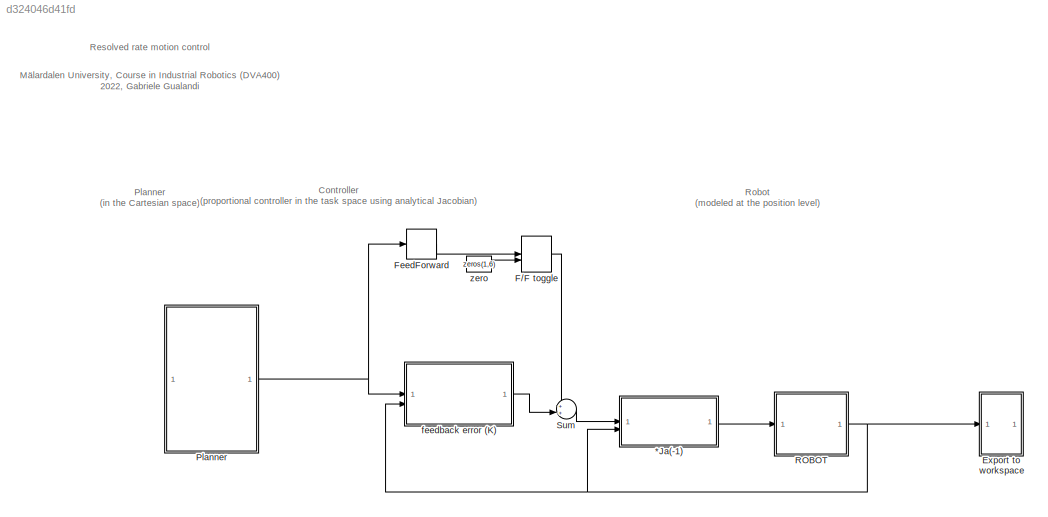
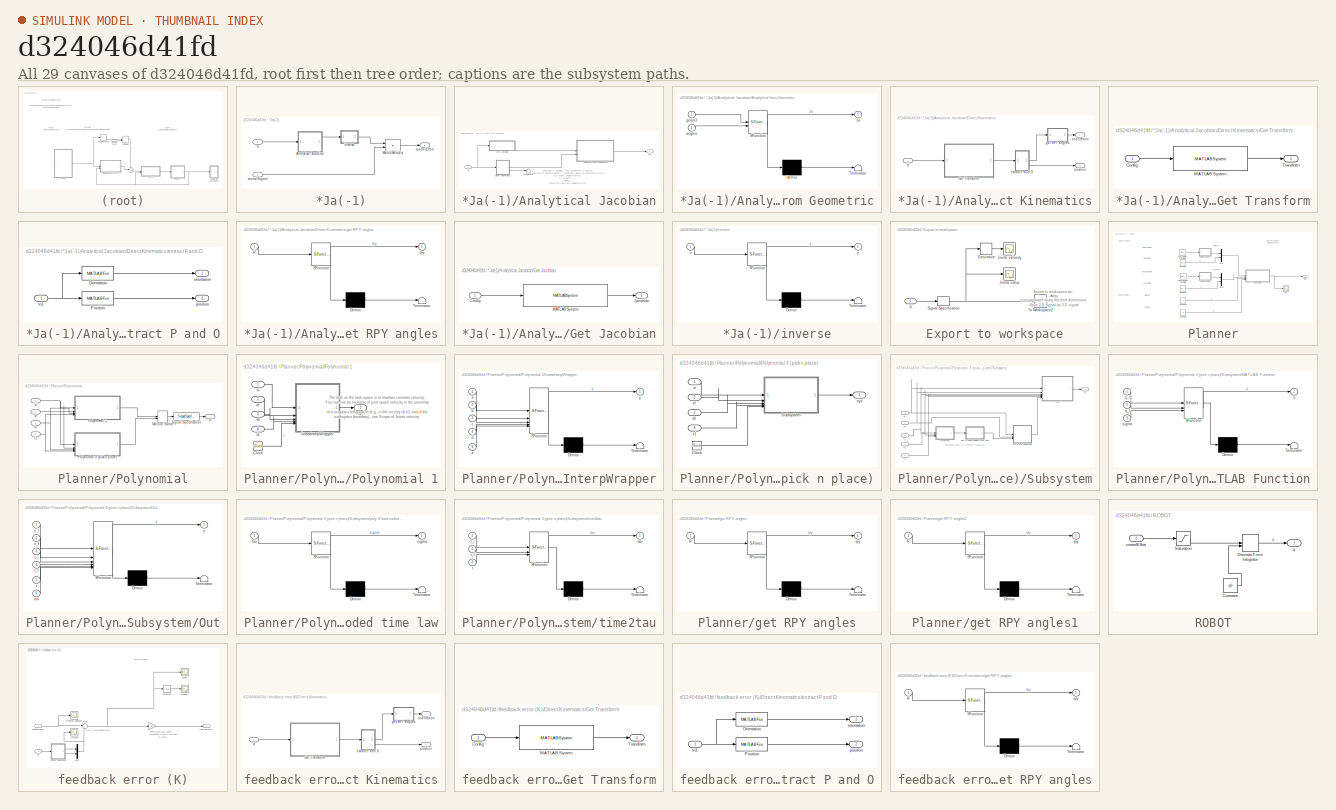
[diagram: thumbnail index - all 29 canvases of the model, root first then tree order]
MODEL slx_d324046d41fd
KIND model
CONFIG AbsTol = auto
CONFIG EnableMultiTasking = off
CONFIG FixedStep = 0.001
CONFIG MaxStep = auto
CONFIG MinStep = auto
CONFIG RelTol = 1e-3
CONFIG SampleTimeConstraint = Unconstrained
CONFIG SolverName = FixedStepAuto
CONFIG StartTime = 0.0
CONFIG StopTime = 5
BLOCK [SubSystem] *Ja(-1)
BLOCK [SubSystem] *Ja(-1)/Analytical Jacobian
BLOCK [SubSystem] *Ja(-1)/Analytical Jacobian/Analytical from Geometric
  ErrorFcn = Stateflow.Translate.translate
  PermitHierarchicalResolution = ExplicitOnly
  SFBlockType = MATLAB Function
  TreatAsAtomicUnit = on
BLOCK [Demux] *Ja(-1)/Analytical Jacobian/Analytical from Geometric/ Demux 
  Outputs = 1
BLOCK [S-Function] *Ja(-1)/Analytical Jacobian/Analytical from Geometric/ SFunction 
  EnableBusSupport = off
  FunctionName = sf_sfun
  PortCounts = [2 2]
  SFcnIsStateOwnerBlock = off
  SFunctionDeploymentMode = off
  Tag = Stateflow S-Function 5
BLOCK [Terminator] *Ja(-1)/Analytical Jacobian/Analytical from Geometric/ Terminator 
BLOCK [Outport] *Ja(-1)/Analytical Jacobian/Analytical from Geometric/Ja
BLOCK [Inport] *Ja(-1)/Analytical Jacobian/Analytical from Geometric/angles
  Port = 2
BLOCK [Inport] *Ja(-1)/Analytical Jacobian/Analytical from Geometric/geomJ
BLOCK [SubSystem] *Ja(-1)/Analytical Jacobian/Direct Kinematics
BLOCK [SubSystem] *Ja(-1)/Analytical Jacobian/Direct Kinematics/Get Transform
  LibrarySourceBlock = robotmaniplib/Get Transform
BLOCK [Inport] *Ja(-1)/Analytical Jacobian/Direct Kinematics/Get Transform/Config
BLOCK [MATLABSystem] *Ja(-1)/Analytical Jacobian/Direct Kinematics/Get Transform/MATLAB System
  MaskDisplay = disp('GetTransformBlock');\nport_label('input',1,'q');\nport_label('output',1,'tform');
  MaskType = robotics.slmanip.internal.block.GetTransformBlock
  SimulateUsing = Code generation
  SourceBodyName = SourceBody
  System = robotics.slmanip.internal.block.GetTransformBlock
  TargetBodyName = TargetBody
  TreeStruct = TreeStruct
BLOCK [Outport] *Ja(-1)/Analytical Jacobian/Direct Kinematics/Get Transform/Transform
  VectorParamsAs1DForOutWhenUnconnected = off
BLOCK [SubSystem] *Ja(-1)/Analytical Jacobian/Direct Kinematics/extract P and O
BLOCK [Inport] *Ja(-1)/Analytical Jacobian/Direct Kinematics/extract P and O/In1
  NameLocation = top
BLOCK [MATLABFcn] *Ja(-1)/Analytical Jacobian/Direct Kinematics/extract P and O/Orientation
  MATLABFcn = tform2rotm
  Output1D = off
BLOCK [MATLABFcn] *Ja(-1)/Analytical Jacobian/Direct Kinematics/extract P and O/Position
  MATLABFcn = tform2trvec
BLOCK [Outport] *Ja(-1)/Analytical Jacobian/Direct Kinematics/extract P and O/orientation
  NameLocation = top
BLOCK [Outport] *Ja(-1)/Analytical Jacobian/Direct Kinematics/extract P and O/position
  NameLocation = top
  Port = 2
BLOCK [SubSystem] *Ja(-1)/Analytical Jacobian/Direct Kinematics/get RPY angles
  ErrorFcn = Stateflow.Translate.translate
  PermitHierarchicalResolution = ExplicitOnly
  SFBlockType = MATLAB Function
  TreatAsAtomicUnit = on
BLOCK [Demux] *Ja(-1)/Analytical Jacobian/Direct Kinematics/get RPY angles/ Demux 
  Outputs = 1
BLOCK [S-Function] *Ja(-1)/Analytical Jacobian/Direct Kinematics/get RPY angles/ SFunction 
  EnableBusSupport = off
  FunctionName = sf_sfun
  PortCounts = [1 2]
  SFcnIsStateOwnerBlock = off
  SFunctionDeploymentMode = off
  Tag = Stateflow S-Function 3
BLOCK [Terminator] *Ja(-1)/Analytical Jacobian/Direct Kinematics/get RPY angles/ Terminator 
BLOCK [Inport] *Ja(-1)/Analytical Jacobian/Direct Kinematics/get RPY angles/R
BLOCK [Outport] *Ja(-1)/Analytical Jacobian/Direct Kinematics/get RPY angles/rpy
BLOCK [Outport] *Ja(-1)/Analytical Jacobian/Direct Kinematics/orientation
  NameLocation = top
BLOCK [Outport] *Ja(-1)/Analytical Jacobian/Direct Kinematics/position
  Port = 2
BLOCK [Inport] *Ja(-1)/Analytical Jacobian/Direct Kinematics/q
BLOCK [SubSystem] *Ja(-1)/Analytical Jacobian/Get Jacobian
  LibrarySourceBlock = robotmaniplib/Get Jacobian
BLOCK [Inport] *Ja(-1)/Analytical Jacobian/Get Jacobian/Config
BLOCK [Outport] *Ja(-1)/Analytical Jacobian/Get Jacobian/Jacobian
  VectorParamsAs1DForOutWhenUnconnected = off
BLOCK [MATLABSystem] *Ja(-1)/Analytical Jacobian/Get Jacobian/MATLAB System
  EEBodyName = EndEffector
  MaskDisplay = disp('GetJacobianBlock');\nport_label('input',1,'q');\nport_label('output',1,'jacobianMat');
  MaskType = robotics.slmanip.internal.block.GetJacobianBlock
  SimulateUsing = Code generation
  System = robotics.slmanip.internal.block.GetJacobianBlock
  TreeStruct = TreeStruct
BLOCK [Outport] *Ja(-1)/Analytical Jacobian/Ja
BLOCK [Terminator] *Ja(-1)/Analytical Jacobian/Terminator
BLOCK [Inport] *Ja(-1)/Analytical Jacobian/q
BLOCK [Product] *Ja(-1)/Matrix Multiply
  Multiplication = Matrix(*)
BLOCK [Outport] *Ja(-1)/controlEffort
BLOCK [Inport] *Ja(-1)/controlSignal
BLOCK [SubSystem] *Ja(-1)/inverse
  ErrorFcn = Stateflow.Translate.translate
  PermitHierarchicalResolution = ExplicitOnly
  SFBlockType = MATLAB Function
  TreatAsAtomicUnit = on
BLOCK [Demux] *Ja(-1)/inverse/ Demux 
  Outputs = 1
BLOCK [S-Function] *Ja(-1)/inverse/ SFunction 
  EnableBusSupport = on
  FunctionName = sf_sfun
  PortCounts = [1 2]
  SFcnIsStateOwnerBlock = off
  SFunctionDeploymentMode = off
  Tag = Stateflow S-Function 2
BLOCK [Terminator] *Ja(-1)/inverse/ Terminator 
BLOCK [Inport] *Ja(-1)/inverse/u
BLOCK [Outport] *Ja(-1)/inverse/y
BLOCK [Inport] *Ja(-1)/q
  Port = 2
BLOCK [SubSystem] Export to workspace
BLOCK [Derivative] Export to workspace/Derivative
BLOCK [Scope] Export to workspace/Joints value
  Floating = off
  NumInputPorts = 1
  ScopeSpecificationString = Simulink.scopes.TimeScopeBlockCfg('CurrentConfiguration', extmgr.ConfigurationSet(extmgr.Configuration('Core','General UI',true),extmgr.Configuration('Core','Source UI',true),extmgr.Configuration('Sources','WiredSimulink',true,'DataLoggingVariableName','ScopeData4'),extmgr.Configuration('Visuals','Time Domain',true,'SerializedDisplays',{struct('MinYLimReal','-1.73617','MaxYLimReal','3.68357','YLab...<+2192ch>
BLOCK [Scope] Export to workspace/Joints velocity
  Floating = off
  NumInputPorts = 1
  ScopeSpecificationString = Simulink.scopes.TimeScopeBlockCfg('CurrentConfiguration', extmgr.ConfigurationSet(extmgr.Configuration('Core','General UI',true),extmgr.Configuration('Core','Source UI',true),extmgr.Configuration('Sources','WiredSimulink',true,'DataLoggingVariableName','ScopeData3'),extmgr.Configuration('Visuals','Time Domain',true,'SerializedDisplays',{struct('MinYLimReal','-2.32072','MaxYLimReal','7.38548','YLab...<+2132ch>
BLOCK [SignalSpecification] Export to workspace/Signal Specification
  Dimensions = [6,1]
BLOCK [ToWorkspace] Export to workspace/To Workspace2
  MaxDataPoints = inf
  NameLocation = top
  SampleTime = -1
  VariableName = q
BLOCK [Inport] Export to workspace/q
BLOCK [ManualSwitch] F//F toggle
BLOCK [Derivative] FeedForward
BLOCK [SubSystem] Planner
BLOCK [Constant] Planner/Constant
  Value = pe_i
  VectorParams1D = off
BLOCK [Constant] Planner/Constant1
  Value = pe_f
  VectorParams1D = off
BLOCK [Constant] Planner/Constant2
  Value = t_i
BLOCK [Constant] Planner/Constant3
  Value = t_f
BLOCK [Constant] Planner/Desired Final Orientation
  Value = orie_f
BLOCK [Constant] Planner/Desired Initial Orientation
  Value = orie_i
BLOCK [Mux] Planner/Mux1
  DisplayOption = bar
  Inputs = 2
BLOCK [Mux] Planner/Mux2
  DisplayOption = bar
  Inputs = 2
BLOCK [Scope] Planner/Plot
  Floating = off
  NumInputPorts = 1
  ScopeSpecificationString = Simulink.scopes.TimeScopeBlockCfg('CurrentConfiguration', extmgr.ConfigurationSet(extmgr.Configuration('Core','General UI',true),extmgr.Configuration('Core','Source UI',true),extmgr.Configuration('Sources','WiredSimulink',true,'DataLoggingVariableName','ScopeData7'),extmgr.Configuration('Visuals','Time Domain',true,'SerializedDisplays',{struct('MinYLimReal','-0.75671','MaxYLimReal','1.82941','YLab...<+2161ch>
BLOCK [SubSystem] Planner/Polynomial
BLOCK [ManualSwitch] Planner/Polynomial/Manual Switch
BLOCK [Outport] Planner/Polynomial/P
BLOCK [SubSystem] Planner/Polynomial/Polynomial 1
BLOCK [Clock] Planner/Polynomial/Polynomial 1/Clock
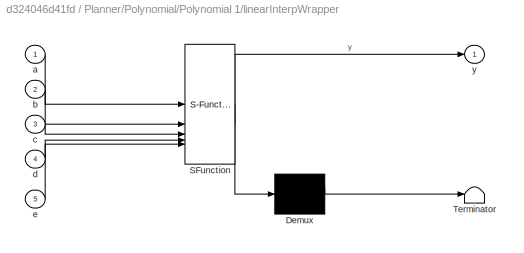
BLOCK [SubSystem] Planner/Polynomial/Polynomial 1/linearInterpWrapper
  ErrorFcn = Stateflow.Translate.translate
  PermitHierarchicalResolution = ExplicitOnly
  SFBlockType = MATLAB Function
  TreatAsAtomicUnit = on
BLOCK [Demux] Planner/Polynomial/Polynomial 1/linearInterpWrapper/ Demux 
  Outputs = 1
BLOCK [S-Function] Planner/Polynomial/Polynomial 1/linearInterpWrapper/ SFunction 
  EnableBusSupport = on
  FunctionName = sf_sfun
  PortCounts = [5 2]
  SFcnIsStateOwnerBlock = off
  SFunctionDeploymentMode = off
  Tag = Stateflow S-Function 10
BLOCK [Terminator] Planner/Polynomial/Polynomial 1/linearInterpWrapper/ Terminator 
BLOCK [Inport] Planner/Polynomial/Polynomial 1/linearInterpWrapper/a
BLOCK [Inport] Planner/Polynomial/Polynomial 1/linearInterpWrapper/b
  Port = 2
BLOCK [Inport] Planner/Polynomial/Polynomial 1/linearInterpWrapper/c
  Port = 3
BLOCK [Inport] Planner/Polynomial/Polynomial 1/linearInterpWrapper/d
  Port = 4
BLOCK [Inport] Planner/Polynomial/Polynomial 1/linearInterpWrapper/e
  Port = 5
BLOCK [Outport] Planner/Polynomial/Polynomial 1/linearInterpWrapper/y
BLOCK [Inport] Planner/Polynomial/Polynomial 1/t0
  Port = 3
BLOCK [Inport] Planner/Polynomial/Polynomial 1/t1
  Port = 4
BLOCK [Inport] Planner/Polynomial/Polynomial 1/xf
  Port = 2
BLOCK [Inport] Planner/Polynomial/Polynomial 1/xi
BLOCK [Outport] Planner/Polynomial/Polynomial 1/xyz
BLOCK [SubSystem] Planner/Polynomial/Polynomial 3 (pick n place)
BLOCK [Clock] Planner/Polynomial/Polynomial 3 (pick n place)/Clock
BLOCK [SubSystem] Planner/Polynomial/Polynomial 3 (pick n place)/Subsystem
BLOCK [SubSystem] Planner/Polynomial/Polynomial 3 (pick n place)/Subsystem/MATLAB Function
  ErrorFcn = Stateflow.Translate.translate
  PermitHierarchicalResolution = ExplicitOnly
  SFBlockType = MATLAB Function
  TreatAsAtomicUnit = on
BLOCK [Demux] Planner/Polynomial/Polynomial 3 (pick n place)/Subsystem/MATLAB Function/ Demux 
  Outputs = 1
BLOCK [S-Function] Planner/Polynomial/Polynomial 3 (pick n place)/Subsystem/MATLAB Function/ SFunction 
  EnableBusSupport = on
  FunctionName = sf_sfun
  PortCounts = [3 2]
  SFcnIsStateOwnerBlock = off
  SFunctionDeploymentMode = off
  Tag = Stateflow S-Function 7
BLOCK [Terminator] Planner/Polynomial/Polynomial 3 (pick n place)/Subsystem/MATLAB Function/ Terminator 
BLOCK [Outport] Planner/Polynomial/Polynomial 3 (pick n place)/Subsystem/MATLAB Function/q
BLOCK [Inport] Planner/Polynomial/Polynomial 3 (pick n place)/Subsystem/MATLAB Function/q_f
  Port = 2
BLOCK [Inport] Planner/Polynomial/Polynomial 3 (pick n place)/Subsystem/MATLAB Function/q_i
BLOCK [Inport] Planner/Polynomial/Polynomial 3 (pick n place)/Subsystem/MATLAB Function/sigma
  Port = 3
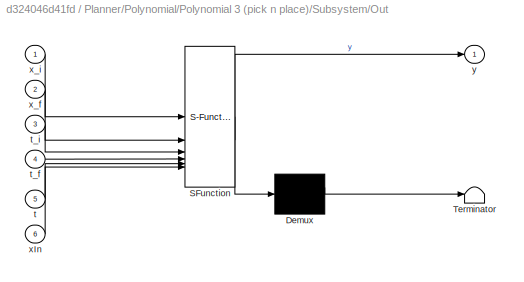
BLOCK [SubSystem] Planner/Polynomial/Polynomial 3 (pick n place)/Subsystem/Out
  ErrorFcn = Stateflow.Translate.translate
  PermitHierarchicalResolution = ExplicitOnly
  SFBlockType = MATLAB Function
  TreatAsAtomicUnit = on
BLOCK [Demux] Planner/Polynomial/Polynomial 3 (pick n place)/Subsystem/Out/ Demux 
  Outputs = 1
BLOCK [S-Function] Planner/Polynomial/Polynomial 3 (pick n place)/Subsystem/Out/ SFunction 
  EnableBusSupport = on
  FunctionName = sf_sfun
  PortCounts = [6 2]
  SFcnIsStateOwnerBlock = off
  SFunctionDeploymentMode = off
  Tag = Stateflow S-Function 1
BLOCK [Terminator] Planner/Polynomial/Polynomial 3 (pick n place)/Subsystem/Out/ Terminator 
BLOCK [Inport] Planner/Polynomial/Polynomial 3 (pick n place)/Subsystem/Out/t
  Port = 5
BLOCK [Inport] Planner/Polynomial/Polynomial 3 (pick n place)/Subsystem/Out/t_f
  Port = 4
BLOCK [Inport] Planner/Polynomial/Polynomial 3 (pick n place)/Subsystem/Out/t_i
  Port = 3
BLOCK [Inport] Planner/Polynomial/Polynomial 3 (pick n place)/Subsystem/Out/xIn
  Port = 6
BLOCK [Inport] Planner/Polynomial/Polynomial 3 (pick n place)/Subsystem/Out/x_f
  Port = 2
BLOCK [Inport] Planner/Polynomial/Polynomial 3 (pick n place)/Subsystem/Out/x_i
BLOCK [Outport] Planner/Polynomial/Polynomial 3 (pick n place)/Subsystem/Out/y
BLOCK [SubSystem] Planner/Polynomial/Polynomial 3 (pick n place)/Subsystem/poly 3 hard coded time law
  ErrorFcn = Stateflow.Translate.translate
  PermitHierarchicalResolution = ExplicitOnly
  SFBlockType = MATLAB Function
  TreatAsAtomicUnit = on
BLOCK [Demux] Planner/Polynomial/Polynomial 3 (pick n place)/Subsystem/poly 3 hard coded time law/ Demux 
  Outputs = 1
BLOCK [S-Function] Planner/Polynomial/Polynomial 3 (pick n place)/Subsystem/poly 3 hard coded time law/ SFunction 
  EnableBusSupport = on
  FunctionName = sf_sfun
  PortCounts = [1 2]
  SFcnIsStateOwnerBlock = off
  SFunctionDeploymentMode = off
  Tag = Stateflow S-Function 11
BLOCK [Terminator] Planner/Polynomial/Polynomial 3 (pick n place)/Subsystem/poly 3 hard coded time law/ Terminator 
BLOCK [Outport] Planner/Polynomial/Polynomial 3 (pick n place)/Subsystem/poly 3 hard coded time law/sigma
BLOCK [Inport] Planner/Polynomial/Polynomial 3 (pick n place)/Subsystem/poly 3 hard coded time law/tau
BLOCK [Outport] Planner/Polynomial/Polynomial 3 (pick n place)/Subsystem/q
BLOCK [Inport] Planner/Polynomial/Polynomial 3 (pick n place)/Subsystem/q_f
  Port = 2
BLOCK [Inport] Planner/Polynomial/Polynomial 3 (pick n place)/Subsystem/q_i
BLOCK [Inport] Planner/Polynomial/Polynomial 3 (pick n place)/Subsystem/t
  Port = 5
BLOCK [Inport] Planner/Polynomial/Polynomial 3 (pick n place)/Subsystem/t0
  Port = 3
BLOCK [Inport] Planner/Polynomial/Polynomial 3 (pick n place)/Subsystem/t1
  Port = 4
BLOCK [SubSystem] Planner/Polynomial/Polynomial 3 (pick n place)/Subsystem/time2tau
  ErrorFcn = Stateflow.Translate.translate
  PermitHierarchicalResolution = ExplicitOnly
  SFBlockType = MATLAB Function
  TreatAsAtomicUnit = on
BLOCK [Demux] Planner/Polynomial/Polynomial 3 (pick n place)/Subsystem/time2tau/ Demux 
  Outputs = 1
BLOCK [S-Function] Planner/Polynomial/Polynomial 3 (pick n place)/Subsystem/time2tau/ SFunction 
  EnableBusSupport = on
  FunctionName = sf_sfun
  PortCounts = [3 2]
  SFcnIsStateOwnerBlock = off
  SFunctionDeploymentMode = off
  Tag = Stateflow S-Function 12
BLOCK [Terminator] Planner/Polynomial/Polynomial 3 (pick n place)/Subsystem/time2tau/ Terminator 
BLOCK [Inport] Planner/Polynomial/Polynomial 3 (pick n place)/Subsystem/time2tau/t
  Port = 3
BLOCK [Inport] Planner/Polynomial/Polynomial 3 (pick n place)/Subsystem/time2tau/t_f
  Port = 2
BLOCK [Inport] Planner/Polynomial/Polynomial 3 (pick n place)/Subsystem/time2tau/t_i
BLOCK [Outport] Planner/Polynomial/Polynomial 3 (pick n place)/Subsystem/time2tau/tau
BLOCK [Inport] Planner/Polynomial/Polynomial 3 (pick n place)/t0
  Port = 3
BLOCK [Inport] Planner/Polynomial/Polynomial 3 (pick n place)/t1
  Port = 4
BLOCK [Inport] Planner/Polynomial/Polynomial 3 (pick n place)/xf
  Port = 2
BLOCK [Inport] Planner/Polynomial/Polynomial 3 (pick n place)/xi
BLOCK [Outport] Planner/Polynomial/Polynomial 3 (pick n place)/xyz
BLOCK [SignalSpecification] Planner/Polynomial/Signal Specification
  Dimensions = [6,1]
  OutDataTypeStr = double
BLOCK [Inport] Planner/Polynomial/t0
  Port = 3
BLOCK [Inport] Planner/Polynomial/t1
  Port = 4
BLOCK [Inport] Planner/Polynomial/xf
  Port = 2
BLOCK [Inport] Planner/Polynomial/xi
BLOCK [Outport] Planner/[O,P]'
BLOCK [SubSystem] Planner/get RPY angles
  ErrorFcn = Stateflow.Translate.translate
  PermitHierarchicalResolution = ExplicitOnly
  SFBlockType = MATLAB Function
  TreatAsAtomicUnit = on
BLOCK [Demux] Planner/get RPY angles/ Demux 
  Outputs = 1
BLOCK [S-Function] Planner/get RPY angles/ SFunction 
  EnableBusSupport = on
  FunctionName = sf_sfun
  PortCounts = [1 2]
  SFcnIsStateOwnerBlock = off
  SFunctionDeploymentMode = off
  Tag = Stateflow S-Function 8
BLOCK [Terminator] Planner/get RPY angles/ Terminator 
BLOCK [Inport] Planner/get RPY angles/R
BLOCK [Outport] Planner/get RPY angles/rpy
BLOCK [SubSystem] Planner/get RPY angles1
  ErrorFcn = Stateflow.Translate.translate
  PermitHierarchicalResolution = ExplicitOnly
  SFBlockType = MATLAB Function
  TreatAsAtomicUnit = on
BLOCK [Demux] Planner/get RPY angles1/ Demux 
  Outputs = 1
BLOCK [S-Function] Planner/get RPY angles1/ SFunction 
  EnableBusSupport = on
  FunctionName = sf_sfun
  PortCounts = [1 2]
  SFcnIsStateOwnerBlock = off
  SFunctionDeploymentMode = off
  Tag = Stateflow S-Function 4
BLOCK [Terminator] Planner/get RPY angles1/ Terminator 
BLOCK [Inport] Planner/get RPY angles1/R
BLOCK [Outport] Planner/get RPY angles1/rpy
BLOCK [SubSystem] ROBOT
BLOCK [Constant] ROBOT/Constant
  Value = q0
BLOCK [DiscreteIntegrator] ROBOT/Discrete-Time Integrator
  ICPrevOutput = DiscIntNeverNeededParam
  ICPrevScaledInput = DiscIntNeverNeededParam
  InitialConditionSetting = Auto
  InitialConditionSource = external
  SampleTime = -1
BLOCK [Saturate] ROBOT/Saturation
  LowerLimit = -inf
  UpperLimit = inf
BLOCK [Inport] ROBOT/controlEffort
BLOCK [Outport] ROBOT/q
BLOCK [Sum] Sum
  Inputs = ++|
BLOCK [SubSystem] feedback error (K)
BLOCK [Scope] feedback error (K)/Current
  Floating = off
  NumInputPorts = 1
  ScopeSpecificationString = Simulink.scopes.TimeScopeBlockCfg('CurrentConfiguration', extmgr.ConfigurationSet(extmgr.Configuration('Core','General UI',true),extmgr.Configuration('Core','Source UI',true),extmgr.Configuration('Sources','WiredSimulink',true,'DataLoggingVariableName','ScopeData5'),extmgr.Configuration('Visuals','Time Domain',true,'SerializedDisplays',{struct('MinYLimReal','-3.9264','MaxYLimReal','3.9268','YLabel...<+2215ch>
BLOCK [Scope] feedback error (K)/Desired (planned)
  Floating = off
  NumInputPorts = 1
  ScopeSpecificationString = Simulink.scopes.TimeScopeBlockCfg('CurrentConfiguration', extmgr.ConfigurationSet(extmgr.Configuration('Core','General UI',true),extmgr.Configuration('Core','Source UI',true),extmgr.Configuration('Sources','WiredSimulink',true),extmgr.Configuration('Visuals','Time Domain',true,'SerializedDisplays',{struct('MinYLimReal','-0.75671','MaxYLimReal','1.82941','YLabelReal','','MinYLimMag','0.00000','MaxY...<+2116ch>
BLOCK [SubSystem] feedback error (K)/Direct Kinematics
BLOCK [SubSystem] feedback error (K)/Direct Kinematics/Get Transform
  LibrarySourceBlock = robotmaniplib/Get Transform
BLOCK [Inport] feedback error (K)/Direct Kinematics/Get Transform/Config
BLOCK [MATLABSystem] feedback error (K)/Direct Kinematics/Get Transform/MATLAB System
  MaskDisplay = disp('GetTransformBlock');\nport_label('input',1,'q');\nport_label('output',1,'tform');
  MaskType = robotics.slmanip.internal.block.GetTransformBlock
  SimulateUsing = Code generation
  SourceBodyName = SourceBody
  System = robotics.slmanip.internal.block.GetTransformBlock
  TargetBodyName = TargetBody
  TreeStruct = TreeStruct
BLOCK [Outport] feedback error (K)/Direct Kinematics/Get Transform/Transform
  VectorParamsAs1DForOutWhenUnconnected = off
BLOCK [SubSystem] feedback error (K)/Direct Kinematics/extract P and O
BLOCK [Inport] feedback error (K)/Direct Kinematics/extract P and O/In1
  NameLocation = top
BLOCK [MATLABFcn] feedback error (K)/Direct Kinematics/extract P and O/Orientation
  MATLABFcn = tform2rotm
  Output1D = off
BLOCK [MATLABFcn] feedback error (K)/Direct Kinematics/extract P and O/Position
  MATLABFcn = tform2trvec
BLOCK [Outport] feedback error (K)/Direct Kinematics/extract P and O/orientation
  NameLocation = top
BLOCK [Outport] feedback error (K)/Direct Kinematics/extract P and O/position
  NameLocation = top
  Port = 2
BLOCK [SubSystem] feedback error (K)/Direct Kinematics/get RPY angles
  ErrorFcn = Stateflow.Translate.translate
  PermitHierarchicalResolution = ExplicitOnly
  SFBlockType = MATLAB Function
  TreatAsAtomicUnit = on
BLOCK [Demux] feedback error (K)/Direct Kinematics/get RPY angles/ Demux 
  Outputs = 1
BLOCK [S-Function] feedback error (K)/Direct Kinematics/get RPY angles/ SFunction 
  EnableBusSupport = off
  FunctionName = sf_sfun
  PortCounts = [1 2]
  SFcnIsStateOwnerBlock = off
  SFunctionDeploymentMode = off
  Tag = Stateflow S-Function 6
BLOCK [Terminator] feedback error (K)/Direct Kinematics/get RPY angles/ Terminator 
BLOCK [Inport] feedback error (K)/Direct Kinematics/get RPY angles/R
BLOCK [Outport] feedback error (K)/Direct Kinematics/get RPY angles/rpy
BLOCK [Outport] feedback error (K)/Direct Kinematics/orientation
  NameLocation = top
BLOCK [Outport] feedback error (K)/Direct Kinematics/position
  Port = 2
BLOCK [Inport] feedback error (K)/Direct Kinematics/q
BLOCK [Gain] feedback error (K)/Gain
  Gain = Kp
  Multiplication = Matrix(K*u)
BLOCK [Integrator] feedback error (K)/Integrator
BLOCK [Mux] feedback error (K)/Mux
  DisplayOption = bar
  Inputs = 2
BLOCK [Scope] feedback error (K)/Scope
  Floating = off
  NumInputPorts = 1
  ScopeSpecificationString = Simulink.scopes.TimeScopeBlockCfg('CurrentConfiguration', extmgr.ConfigurationSet(extmgr.Configuration('Core','General UI',true),extmgr.Configuration('Core','Source UI',true),extmgr.Configuration('Sources','WiredSimulink',true,'DataLoggingVariableName','ScopeData1'),extmgr.Configuration('Visuals','Time Domain',true,'SerializedDisplays',{struct('MinYLimReal','-0.22307','MaxYLimReal','0.0284','YLabe...<+2100ch>
BLOCK [Scope] feedback error (K)/Scope1
  Floating = off
  NumInputPorts = 1
  ScopeSpecificationString = Simulink.scopes.TimeScopeBlockCfg('CurrentConfiguration', extmgr.ConfigurationSet(extmgr.Configuration('Core','General UI',true),extmgr.Configuration('Core','Source UI',true),extmgr.Configuration('Sources','WiredSimulink',true,'DataLoggingVariableName','ScopeData2'),extmgr.Configuration('Visuals','Time Domain',true,'SerializedDisplays',{struct('MinYLimReal','-0.00795','MaxYLimReal','0.00772','YLab...<+2161ch>
BLOCK [Sum] feedback error (K)/Sum
  Inputs = |+-
BLOCK [Outport] feedback error (K)/controlEffort1
BLOCK [Inport] feedback error (K)/desired pose
BLOCK [Inport] feedback error (K)/q
  Port = 2
BLOCK [Constant] zero
  Value = zeros(1,6)
ANNOTATION (root): Controller (proportional controller in the task space using analytical Jacobian)
ANNOTATION (root): Mälardalen University, Course in Industrial Robotics (DVA400) 2022, Gabriele Gualandi
ANNOTATION (root): Planner (in the Cartesian space)
ANNOTATION (root): Resolved rate motion control
ANNOTATION (root): Robot (modeled at the position level)
ANNOTATION *Ja(-1)/Analytical Jacobian: Conversion of Jacobian, from Geometric to Analytical Matlab use the "Spatial Geometry" convenction, where the orientation in the first three rows instead of the last three rows. So we use: $J_{A}=\left[\begin{array}{cc} T^{-1} & 0 \\ 0 & I \end{array}\right]\left[\begin{array}{c} J_{O} \\ J_{P} \end{array}\right]=\left[\begin{array}{l} T^{-1} J_{O} \\ 0 \end{array}\right]+\left[\begin{array}{c} 0\...<+525ch>
ANNOTATION Export to workspace: Export to workspace as: - Array - Save 2-D Signal as 3-D signal (concatenated along the third dimension)
ANNOTATION Planner: Desired Trajectory in the task space
ANNOTATION Planner: Final Orientation
ANNOTATION Planner: Final Pose
ANNOTATION Planner: Final Position
ANNOTATION Planner: Final Time
ANNOTATION Planner: Inital Pose
ANNOTATION Planner: Initial Orientation
ANNOTATION Planner: Initial Position
ANNOTATION Planner: Initial Time
ANNOTATION Planner: Path Parameters
ANNOTATION Planner: Time parameters
ANNOTATION Planner/Polynomial/Polynomial 1: The task on the task space is to mantain constant velocity. You can see an increase of joint space velocity in the proximity of a singular configuration (e.g., in the vicinity of z0, and of the workspace boundary) - see Scope of Joints velocity.
ANNOTATION Planner/Polynomial/Polynomial 3 (pick n place)/Subsystem: $\sigma(\tau) = 3\,\tau^2-2 {\tau}^3}$
ANNOTATION feedback error (K): Current Hand position error
ANNOTATION feedback error (K): Desired hand velocity (considering a motor controlled in velocity)
ANNOTATION feedback error (K): Performances
LINE *Ja(-1)/Analytical Jacobian/Analytical from Geometric:1 -> *Ja(-1)/Analytical Jacobian/Ja:1
LINE *Ja(-1)/Analytical Jacobian/Direct Kinematics/Get Transform:1 -> *Ja(-1)/Analytical Jacobian/Direct Kinematics/extract P and O:1
NET *Ja(-1)/Analytical Jacobian/Direct Kinematics/extract P and O/In1:1 -> *Ja(-1)/Analytical Jacobian/Direct Kinematics/extract P and O/Orientation:1, *Ja(-1)/Analytical Jacobian/Direct Kinematics/extract P and O/Position:1
LINE *Ja(-1)/Analytical Jacobian/Direct Kinematics/extract P and O/Orientation:1 -> *Ja(-1)/Analytical Jacobian/Direct Kinematics/extract P and O/orientation:1
LINE *Ja(-1)/Analytical Jacobian/Direct Kinematics/extract P and O/Position:1 -> *Ja(-1)/Analytical Jacobian/Direct Kinematics/extract P and O/position:1
LINE *Ja(-1)/Analytical Jacobian/Direct Kinematics/extract P and O:1 -> *Ja(-1)/Analytical Jacobian/Direct Kinematics/get RPY angles:1
LINE *Ja(-1)/Analytical Jacobian/Direct Kinematics/extract P and O:2 -> *Ja(-1)/Analytical Jacobian/Direct Kinematics/position:1
LINE *Ja(-1)/Analytical Jacobian/Direct Kinematics/get RPY angles:1 -> *Ja(-1)/Analytical Jacobian/Direct Kinematics/orientation:1
LINE *Ja(-1)/Analytical Jacobian/Direct Kinematics/q:1 -> *Ja(-1)/Analytical Jacobian/Direct Kinematics/Get Transform:1
LINE *Ja(-1)/Analytical Jacobian/Direct Kinematics:1 -> *Ja(-1)/Analytical Jacobian/Analytical from Geometric:2
LINE *Ja(-1)/Analytical Jacobian/Direct Kinematics:2 -> *Ja(-1)/Analytical Jacobian/Terminator:1
LINE *Ja(-1)/Analytical Jacobian/Get Jacobian:1 -> *Ja(-1)/Analytical Jacobian/Analytical from Geometric:1
NET *Ja(-1)/Analytical Jacobian/q:1 -> *Ja(-1)/Analytical Jacobian/Direct Kinematics:1, *Ja(-1)/Analytical Jacobian/Get Jacobian:1
LINE *Ja(-1)/Analytical Jacobian:1 -> *Ja(-1)/inverse:1
LINE *Ja(-1)/Matrix Multiply:1 -> *Ja(-1)/controlEffort:1
LINE *Ja(-1)/controlSignal:1 -> *Ja(-1)/Matrix Multiply:2
LINE *Ja(-1)/inverse:1 -> *Ja(-1)/Matrix Multiply:1
LINE *Ja(-1)/q:1 -> *Ja(-1)/Analytical Jacobian:1
LINE *Ja(-1):1 -> ROBOT:1
LINE Export to workspace/Derivative:1 -> Export to workspace/Joints velocity:1
NET Export to workspace/Signal Specification:1 -> Export to workspace/Derivative:1, Export to workspace/Joints value:1, Export to workspace/To Workspace2:1
LINE Export to workspace/q:1 -> Export to workspace/Signal Specification:1
LINE F//F toggle:1 -> Sum:1
LINE FeedForward:1 -> F//F toggle:1
LINE Planner/Constant1:1 -> Planner/Mux2:2
LINE Planner/Constant2:1 -> Planner/Polynomial:3
LINE Planner/Constant3:1 -> Planner/Polynomial:4
LINE Planner/Constant:1 -> Planner/Mux1:2
LINE Planner/Desired Final Orientation:1 -> Planner/get RPY angles:1
LINE Planner/Desired Initial Orientation:1 -> Planner/get RPY angles1:1
LINE Planner/Mux1:1 -> Planner/Polynomial:1
LINE Planner/Mux2:1 -> Planner/Polynomial:2
LINE Planner/Polynomial/Manual Switch:1 -> Planner/Polynomial/Signal Specification:1
LINE Planner/Polynomial/Polynomial 1/Clock:1 -> Planner/Polynomial/Polynomial 1/linearInterpWrapper:5
LINE Planner/Polynomial/Polynomial 1/linearInterpWrapper:1 -> Planner/Polynomial/Polynomial 1/xyz:1
LINE Planner/Polynomial/Polynomial 1/t0:1 -> Planner/Polynomial/Polynomial 1/linearInterpWrapper:3
LINE Planner/Polynomial/Polynomial 1/t1:1 -> Planner/Polynomial/Polynomial 1/linearInterpWrapper:4
LINE Planner/Polynomial/Polynomial 1/xf:1 -> Planner/Polynomial/Polynomial 1/linearInterpWrapper:2
LINE Planner/Polynomial/Polynomial 1/xi:1 -> Planner/Polynomial/Polynomial 1/linearInterpWrapper:1
LINE Planner/Polynomial/Polynomial 1:1 -> Planner/Polynomial/Manual Switch:1
LINE Planner/Polynomial/Polynomial 3 (pick n place)/Clock:1 -> Planner/Polynomial/Polynomial 3 (pick n place)/Subsystem:5
LINE Planner/Polynomial/Polynomial 3 (pick n place)/Subsystem/MATLAB Function:1 -> Planner/Polynomial/Polynomial 3 (pick n place)/Subsystem/Out:6
LINE Planner/Polynomial/Polynomial 3 (pick n place)/Subsystem/Out:1 -> Planner/Polynomial/Polynomial 3 (pick n place)/Subsystem/q:1
LINE Planner/Polynomial/Polynomial 3 (pick n place)/Subsystem/poly 3 hard coded time law:1 -> Planner/Polynomial/Polynomial 3 (pick n place)/Subsystem/MATLAB Function:3
NET Planner/Polynomial/Polynomial 3 (pick n place)/Subsystem/q_f:1 -> Planner/Polynomial/Polynomial 3 (pick n place)/Subsystem/MATLAB Function:2, Planner/Polynomial/Polynomial 3 (pick n place)/Subsystem/Out:2
NET Planner/Polynomial/Polynomial 3 (pick n place)/Subsystem/q_i:1 -> Planner/Polynomial/Polynomial 3 (pick n place)/Subsystem/MATLAB Function:1, Planner/Polynomial/Polynomial 3 (pick n place)/Subsystem/Out:1
NET Planner/Polynomial/Polynomial 3 (pick n place)/Subsystem/t0:1 -> Planner/Polynomial/Polynomial 3 (pick n place)/Subsystem/Out:3, Planner/Polynomial/Polynomial 3 (pick n place)/Subsystem/time2tau:1
NET Planner/Polynomial/Polynomial 3 (pick n place)/Subsystem/t1:1 -> Planner/Polynomial/Polynomial 3 (pick n place)/Subsystem/Out:4, Planner/Polynomial/Polynomial 3 (pick n place)/Subsystem/time2tau:2
NET Planner/Polynomial/Polynomial 3 (pick n place)/Subsystem/t:1 -> Planner/Polynomial/Polynomial 3 (pick n place)/Subsystem/Out:5, Planner/Polynomial/Polynomial 3 (pick n place)/Subsystem/time2tau:3
LINE Planner/Polynomial/Polynomial 3 (pick n place)/Subsystem/time2tau:1 -> Planner/Polynomial/Polynomial 3 (pick n place)/Subsystem/poly 3 hard coded time law:1
LINE Planner/Polynomial/Polynomial 3 (pick n place)/Subsystem:1 -> Planner/Polynomial/Polynomial 3 (pick n place)/xyz:1
LINE Planner/Polynomial/Polynomial 3 (pick n place)/t0:1 -> Planner/Polynomial/Polynomial 3 (pick n place)/Subsystem:3
LINE Planner/Polynomial/Polynomial 3 (pick n place)/t1:1 -> Planner/Polynomial/Polynomial 3 (pick n place)/Subsystem:4
LINE Planner/Polynomial/Polynomial 3 (pick n place)/xf:1 -> Planner/Polynomial/Polynomial 3 (pick n place)/Subsystem:2
LINE Planner/Polynomial/Polynomial 3 (pick n place)/xi:1 -> Planner/Polynomial/Polynomial 3 (pick n place)/Subsystem:1
LINE Planner/Polynomial/Polynomial 3 (pick n place):1 -> Planner/Polynomial/Manual Switch:2
LINE Planner/Polynomial/Signal Specification:1 -> Planner/Polynomial/P:1
NET Planner/Polynomial/t0:1 -> Planner/Polynomial/Polynomial 1:3, Planner/Polynomial/Polynomial 3 (pick n place):3
NET Planner/Polynomial/t1:1 -> Planner/Polynomial/Polynomial 1:4, Planner/Polynomial/Polynomial 3 (pick n place):4
NET Planner/Polynomial/xf:1 -> Planner/Polynomial/Polynomial 1:2, Planner/Polynomial/Polynomial 3 (pick n place):2
NET Planner/Polynomial/xi:1 -> Planner/Polynomial/Polynomial 1:1, Planner/Polynomial/Polynomial 3 (pick n place):1
NET Planner/Polynomial:1 -> Planner/Plot:1, Planner/[O,P]':1
LINE Planner/get RPY angles1:1 -> Planner/Mux1:1
LINE Planner/get RPY angles:1 -> Planner/Mux2:1
NET Planner:1 -> FeedForward:1, feedback error (K):1
LINE ROBOT/Constant:1 -> ROBOT/Discrete-Time Integrator:2
LINE ROBOT/Discrete-Time Integrator:1 -> ROBOT/q:1
LINE ROBOT/Saturation:1 -> ROBOT/Discrete-Time Integrator:1
LINE ROBOT/controlEffort:1 -> ROBOT/Saturation:1
NET ROBOT:1 -> *Ja(-1):2, Export to workspace:1, feedback error (K):2
LINE Sum:1 -> *Ja(-1):1
LINE feedback error (K)/Direct Kinematics/Get Transform:1 -> feedback error (K)/Direct Kinematics/extract P and O:1
NET feedback error (K)/Direct Kinematics/extract P and O/In1:1 -> feedback error (K)/Direct Kinematics/extract P and O/Orientation:1, feedback error (K)/Direct Kinematics/extract P and O/Position:1
LINE feedback error (K)/Direct Kinematics/extract P and O/Orientation:1 -> feedback error (K)/Direct Kinematics/extract P and O/orientation:1
LINE feedback error (K)/Direct Kinematics/extract P and O/Position:1 -> feedback error (K)/Direct Kinematics/extract P and O/position:1
LINE feedback error (K)/Direct Kinematics/extract P and O:1 -> feedback error (K)/Direct Kinematics/get RPY angles:1
LINE feedback error (K)/Direct Kinematics/extract P and O:2 -> feedback error (K)/Direct Kinematics/position:1
LINE feedback error (K)/Direct Kinematics/get RPY angles:1 -> feedback error (K)/Direct Kinematics/orientation:1
LINE feedback error (K)/Direct Kinematics/q:1 -> feedback error (K)/Direct Kinematics/Get Transform:1
LINE feedback error (K)/Direct Kinematics:1 -> feedback error (K)/Mux:1
LINE feedback error (K)/Direct Kinematics:2 -> feedback error (K)/Mux:2
LINE feedback error (K)/Gain:1 -> feedback error (K)/controlEffort1:1
LINE feedback error (K)/Integrator:1 -> feedback error (K)/Scope1:1
NET feedback error (K)/Mux:1 -> feedback error (K)/Current:1, feedback error (K)/Sum:2
NET feedback error (K)/Sum:1 -> feedback error (K)/Gain:1, feedback error (K)/Integrator:1, feedback error (K)/Scope:1
NET feedback error (K)/desired pose:1 -> feedback error (K)/Desired (planned):1, feedback error (K)/Sum:1
LINE feedback error (K)/q:1 -> feedback error (K)/Direct Kinematics:1
LINE feedback error (K):1 -> Sum:2
LINE zero:1 -> F//F toggle:2
note: NET lines group one-source signal fan-out (src -> all destinations, sorted); 1:1 wires keep LINE
CHART Planner/Polynomial/Polynomial 3 (pick n place)/Subsystem/Out states=1 transitions=1
  STATE_LABEL 'eML_blk_kernel()'
  STATE_LABEL 'SCRIPT:\nfunction y = intervalGuardWrapper(x_i, x_f, t_i, t_f, t, xIn )\n\ny = intervalGuard(x_i, x_f, t_i, t_f, t, xIn );\n\n'
CHART *Ja(-1)/inverse states=1 transitions=1
  STATE_LABEL 'eML_blk_kernel()'
  STATE_LABEL 'SCRIPT:\nfunction y = fcn(u)\n\ny = inv(u);\n'
CHART *Ja(-1)/Analytical Jacobian/Direct Kinematics/get RPY angles states=1 transitions=1
  STATE_LABEL 'eML_blk_kernel()'
  STATE_LABEL "SCRIPT:\nfunction rpy = rpyWrap(R)\n%rpy = getRPYanglesFromR(R);\n[rpy, ~] = eulerInverseProblem(R,'zyx','current');\n"
CHART Planner/get RPY angles1 states=1 transitions=1
  STATE_LABEL 'eML_blk_kernel()'
  STATE_LABEL 'SCRIPT:\nfunction rpy = rpyWrap(R)\n\n%rpy = getRPYanglesFromR(R);\n[rpy, ~] = eulerInverseProblem(R);'
CHART *Ja(-1)/Analytical Jacobian/Analytical from Geometric states=1 transitions=1
  STATE_LABEL 'eML_blk_kernel()'
  STATE_LABEL 'SCRIPT:\nfunction Ja = JacobAnFromGeomWrapper(geomJ,angles)\n% For T^-1 matrix using RPY i.e., z(r) y(p) x(y) wrt to the current frame\n\nT = rpy2Tmatrix(angles);\n\nTinv = inv(T);\n\n% Following matlab convention (Jo is on top of Jp)\nJa = [Tinv,zeros(3);zeros(3),eye(3)] * geomJ;\n\n% In standard convention one would have:\n% analytJ = [eye(3),zeros(3);zeros(3),Tinv] * geomJ;\n\n'
CHART feedback error (K)/Direct Kinematics/get RPY angles states=1 transitions=1
  STATE_LABEL 'eML_blk_kernel()'
  STATE_LABEL "SCRIPT:\nfunction rpy = rpyWrap(R)\n%rpy = getRPYanglesFromR(R);\n[rpy, ~] = eulerInverseProblem(R,'zyx','current');\n"
CHART Planner/Polynomial/Polynomial 3 (pick n place)/Subsystem/MATLAB Function states=1 transitions=1
  STATE_LABEL 'eML_blk_kernel()'
  STATE_LABEL 'SCRIPT:\nfunction q = fcn(q_i,q_f,sigma)\n\nh = q_f - q_i;\nq = q_i + h * sigma;\n'
CHART Planner/get RPY angles states=1 transitions=1
  STATE_LABEL 'eML_blk_kernel()'
  STATE_LABEL 'SCRIPT:\nfunction rpy = rpyWrap(R)\n\n[rpy, ~] = eulerInverseProblem( R );'
CHART Planner/Polynomial/Polynomial 1/linearInterpWrapper states=1 transitions=1
  STATE_LABEL 'eML_blk_kernel()'
  STATE_LABEL 'SCRIPT:\nfunction y = linearInterpWrapper(a,b,c,d,e)\n\ny = linearInterp(a,b,c,d,e);\n'
CHART Planner/Polynomial/Polynomial 3 (pick n place)/Subsystem/poly 3 hard coded time law states=1 transitions=1
  STATE_LABEL 'eML_blk_kernel()'
  STATE_LABEL 'SCRIPT:\nfunction sigma = fcn(tau)\n\nsigma = 3 * tau^2 - 2 * tau^3;\n'
CHART Planner/Polynomial/Polynomial 3 (pick n place)/Subsystem/time2tau states=1 transitions=1
  STATE_LABEL 'eML_blk_kernel()'
  STATE_LABEL 'SCRIPT:\nfunction tau = t2tau(t_i,t_f,t)\nT = t_f - t_i;\ntau = (t - t_i)/T;\n'
CHART  states=0 transitions=0
CHART  states=0 transitions=0
CHART  states=0 transitions=0
CHART  states=0 transitions=0
CHART  states=0 transitions=0
CHART  states=0 transitions=0
CHART  states=0 transitions=0
CHART  states=0 transitions=0
CHART  states=0 transitions=0
CHART  states=0 transitions=0
CHART  states=0 transitions=0
